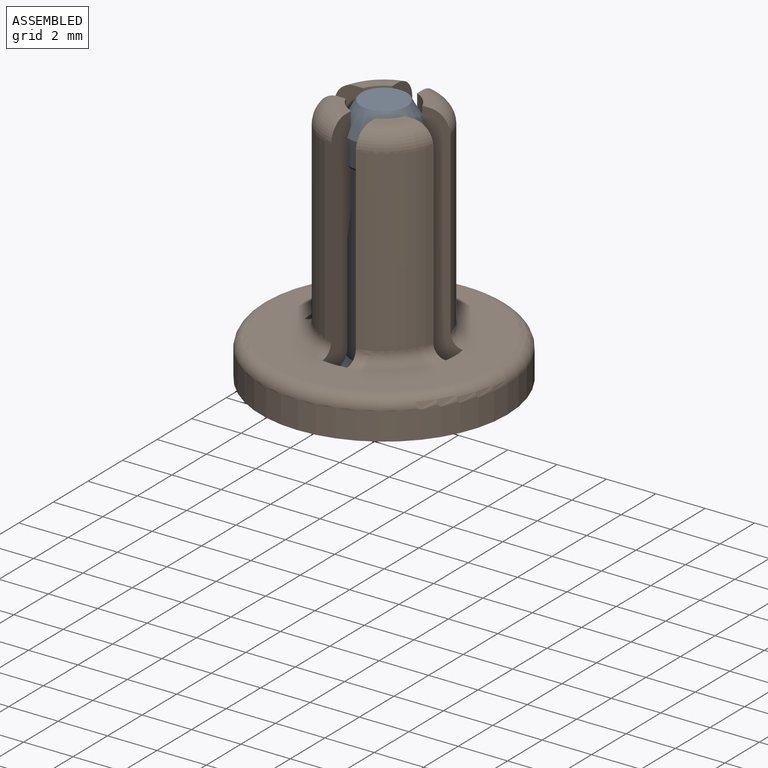
[diagram: assembled view]
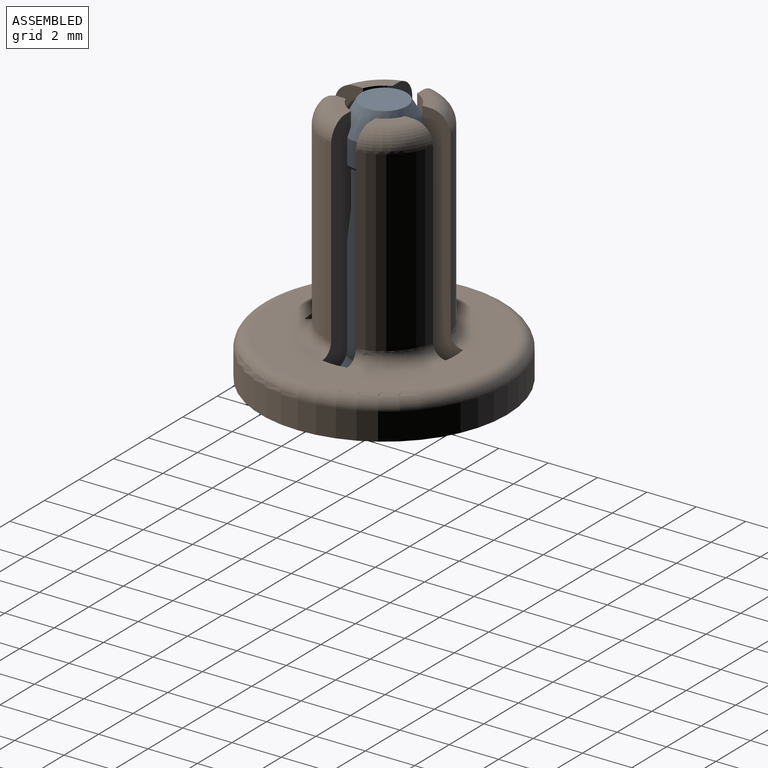
[diagram: assembled view, second angle]
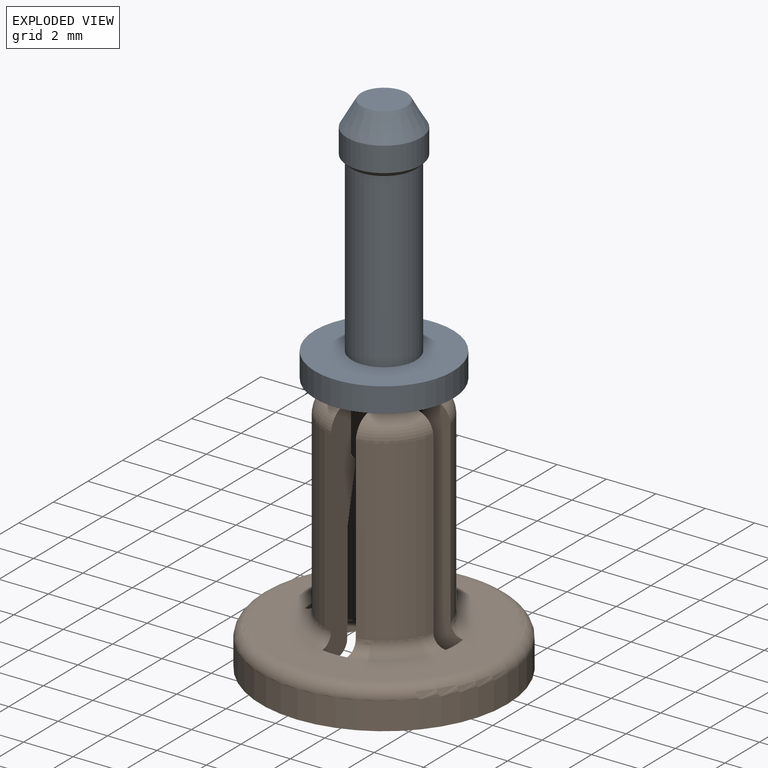
[diagram: exploded view]
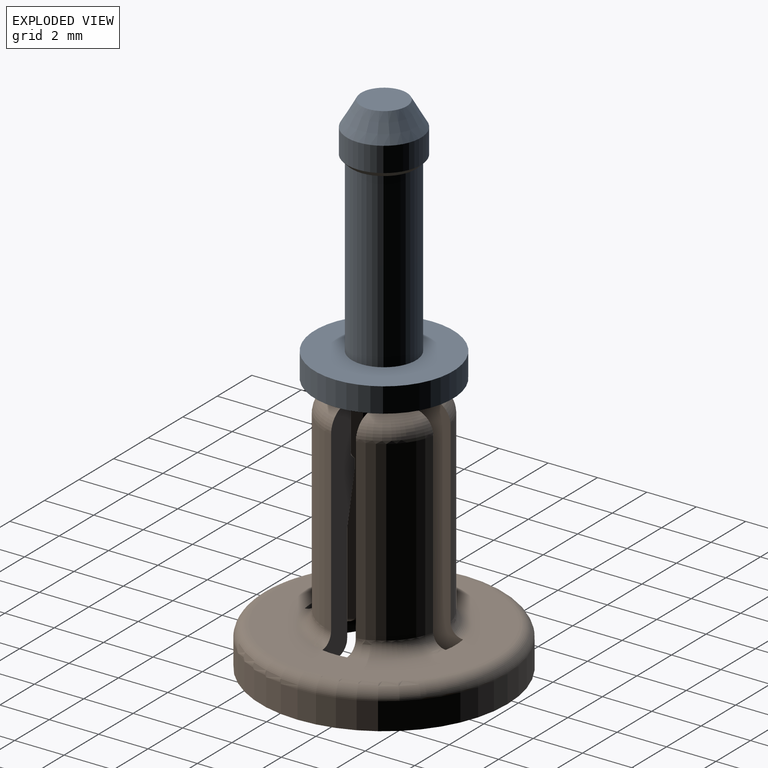
[diagram: exploded view, second angle]
ASSEMBLY  parts=2 mates=2
PART A: 8 faces, bbox 5.6x5.6x10.2 mm
  f0: plane 5.6x5.6mm, normal (0,0,-1), area 24.6mm2, adj f7
  f1: plane 1.85x1.85mm, normal (0,0,1), area 2.7mm2, adj f2
  f2: cone r=1.5mm half-angle=30deg, axis (0,0,-1), area 8.8mm2, adj f1,f3
  f3: cylinder r=1.5mm len=3mm, axis (0,0,-1), area 9.4mm2, adj f2,f4
  f4: cone r=1.3mm half-angle=45deg, axis (0,0,1), area 2.5mm2, adj f3,f5
  f5: cylinder r=1.3mm len=7mm, axis (0,0,-1), area 57.2mm2, adj f4,f6
  f6: plane 5.6x5.6mm, normal (0,0,1), area 19.3mm2, adj f5,f7
  f7: cylinder r=2.8mm len=5.6mm, axis (0,0,-1), area 17.6mm2, adj f0,f6
PART B: 58 faces, bbox 11x11x10.2 mm
  f0: torus R=2.9mm, axis (0,0,1), area 2.4mm2, adj f12,f41,f50,f55
  f1: torus R=2mm, axis (0,0,1), area 1.3mm2, adj f2,f12,f49,f55
  f2: cylinder r=1.5mm len=4mm, axis (0,0,1), area 5.3mm2, adj f1,f3,f12,f55
  f3: cone r=1.5mm half-angle=11.3deg, axis (0,0,-1), area 2mm2, adj f2,f4,f12,f55
  f4: cylinder r=1.1mm len=0.48mm, axis (0,0,1), area 0.3mm2, adj f3,f5,f12,f55
  f5: cone r=1.1mm half-angle=45deg, axis (0,0,1), area 0.2mm2, adj f4,f6,f12,f55
  f6: cylinder r=1.3mm len=2mm, axis (0,0,1), area 2mm2, adj f5,f7,f12,f55
  f7: plane 1.02x1.02mm, normal (0,0,1), area 0.4mm2, adj f6,f12,f42,f55
  f8: torus R=1.6mm, axis (0,0,1), area 2.8mm2, adj f9,f10,f20,f25
  f9: cylinder r=2.4mm len=7.2mm, axis (0,0,1), area 19.9mm2, adj f8,f10,f13,f25
  f10: plane 9.23x2.01mm, normal (0,1,0), area 9.8mm2, adj f8,f9,f11,f13,f14,f15,f16,f17
  f11: cylinder r=2.9mm len=1mm, axis (0,0,-1), area 0.6mm2, adj f10,f12,f49,f50
  f12: plane 9.23x2.01mm, normal (0,-1,0), area 9.8mm2, adj f0,f1,f2,f3,f4,f5,f6,f7
  f13: torus R=2.9mm, axis (0,0,1), area 2.4mm2, adj f9,f10,f25,f50
  f14: torus R=2mm, axis (0,0,1), area 1.3mm2, adj f10,f15,f25,f49
  f15: cylinder r=1.5mm len=4mm, axis (0,0,1), area 5.3mm2, adj f10,f14,f16,f25
  f16: cone r=1.5mm half-angle=11.3deg, axis (0,0,-1), area 2mm2, adj f10,f15,f17,f25
  f17: cylinder r=1.1mm len=0.48mm, axis (0,0,1), area 0.3mm2, adj f10,f16,f18,f25
  f18: cone r=1.1mm half-angle=45deg, axis (0,0,1), area 0.2mm2, adj f10,f17,f19,f25
  f19: cylinder r=1.3mm len=2mm, axis (0,0,1), area 2mm2, adj f10,f18,f20,f25
  f20: plane 1.02x1.02mm, normal (0,0,1), area 0.4mm2, adj f8,f10,f19,f25
  f21: torus R=1.6mm, axis (0,0,1), area 2.8mm2, adj f22,f23,f33,f38
  f22: cylinder r=2.4mm len=7.2mm, axis (0,0,1), area 19.9mm2, adj f21,f23,f26,f38
  f23: plane 9.23x2.01mm, normal (1,0,0), area 9.8mm2, adj f21,f22,f24,f26,f27,f28,f29,f30
  f24: cylinder r=2.9mm len=1mm, axis (0,0,-1), area 0.6mm2, adj f23,f25,f49,f50
  f25: plane 9.23x2.01mm, normal (-1,0,0), area 9.8mm2, adj f8,f9,f13,f14,f15,f16,f17,f18
  f26: torus R=2.9mm, axis (0,0,1), area 2.4mm2, adj f22,f23,f38,f50
  f27: torus R=2mm, axis (0,0,1), area 1.3mm2, adj f23,f28,f38,f49
  f28: cylinder r=1.5mm len=4mm, axis (0,0,1), area 5.3mm2, adj f23,f27,f29,f38
  f29: cone r=1.5mm half-angle=11.3deg, axis (0,0,-1), area 2mm2, adj f23,f28,f30,f38
  f30: cylinder r=1.1mm len=0.48mm, axis (0,0,1), area 0.3mm2, adj f23,f29,f31,f38
  f31: cone r=1.1mm half-angle=45deg, axis (0,0,1), area 0.2mm2, adj f23,f30,f32,f38
  f32: cylinder r=1.3mm len=2mm, axis (0,0,1), area 2mm2, adj f23,f31,f33,f38
  f33: plane 1.02x1.02mm, normal (0,0,1), area 0.4mm2, adj f21,f23,f32,f38
  f34: torus R=1.6mm, axis (0,0,1), area 2.8mm2, adj f35,f36,f40,f56
  f35: cylinder r=2.4mm len=7.2mm, axis (0,0,1), area 19.9mm2, adj f34,f36,f39,f56
  f36: plane 9.23x2.01mm, normal (0,-1,0), area 9.8mm2, adj f34,f35,f37,f39,f40,f43,f44,f45
  f37: cylinder r=2.9mm len=1mm, axis (0,0,-1), area 0.6mm2, adj f36,f38,f49,f50
  f38: plane 9.23x2.01mm, normal (0,1,0), area 9.8mm2, adj f21,f22,f26,f27,f28,f29,f30,f31
  f39: torus R=2.9mm, axis (0,0,1), area 2.4mm2, adj f35,f36,f50,f56
  f40: plane 1.02x1.02mm, normal (0,0,1), area 0.4mm2, adj f34,f36,f43,f56
  f41: cylinder r=2.4mm len=7.2mm, axis (0,0,1), area 19.9mm2, adj f0,f12,f42,f55
  f42: torus R=1.6mm, axis (0,0,1), area 2.8mm2, adj f7,f12,f41,f55
  f43: cylinder r=1.3mm len=2mm, axis (0,0,1), area 2mm2, adj f36,f40,f44,f56
  f44: cone r=1.1mm half-angle=45deg, axis (0,0,1), area 0.2mm2, adj f36,f43,f45,f56
  f45: cylinder r=1.1mm len=0.48mm, axis (0,0,1), area 0.3mm2, adj f36,f44,f46,f56
  f46: cone r=1.5mm half-angle=11.3deg, axis (0,0,-1), area 2mm2, adj f36,f45,f47,f56
  f47: cylinder r=1.5mm len=4mm, axis (0,0,1), area 5.3mm2, adj f36,f46,f48,f56
  f48: torus R=2mm, axis (0,0,1), area 1.3mm2, adj f36,f47,f49,f56
  f49: plane 6x6mm, normal (0,0,-1), area 12.1mm2, adj f1,f10,f11,f12,f14,f23,f24,f25
  f50: plane 9x9mm, normal (0,0,1), area 37.2mm2, adj f0,f11,f13,f24,f26,f37,f39,f51
  f51: torus R=4.5mm, axis (0,0,1), area 23.8mm2, adj f50,f52
  f52: cylinder r=5mm len=10mm, axis (0,0,1), area 34.6mm2, adj f51,f53
  f53: plane 10x10mm, normal (0,0,-1), area 50.3mm2, adj f52,f54
  f54: cylinder r=3mm len=6mm, axis (0,0,1), area 18.8mm2, adj f49,f53
  f55: plane 9.23x2.01mm, normal (-1,0,0), area 9.8mm2, adj f0,f1,f2,f3,f4,f5,f6,f7
  f56: plane 9.23x2.01mm, normal (1,0,0), area 9.8mm2, adj f34,f35,f39,f40,f43,f44,f45,f46
  f57: cylinder r=2.9mm len=1mm, axis (0,0,-1), area 0.6mm2, adj f49,f50,f55,f56
PLACE A t=(-9.19,-0.88,1.85)mm
PLACE B t=(-9.19,-0.88,1.85)mm
MATE cylindrical B.f0 <-> A.f2  axis (0,0,1) through (-9.19,-0.88,2.4)mm
MATE planar B.f0 <-> A.f2  axis (0,0,-1) through (-9.19,-0.88,2.85)mm
